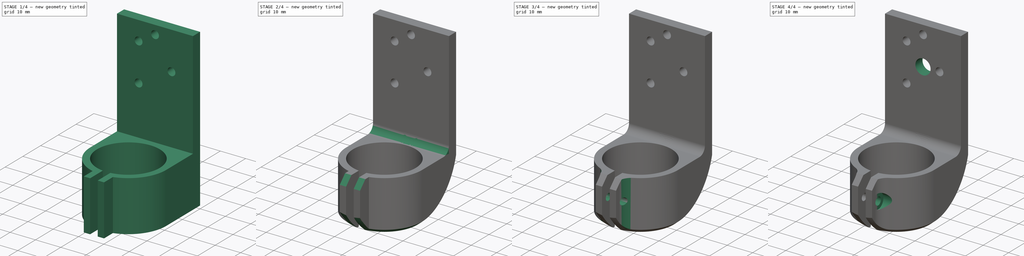
[diagram: build sequence overview — one tinted view per stage of 4, left to right]
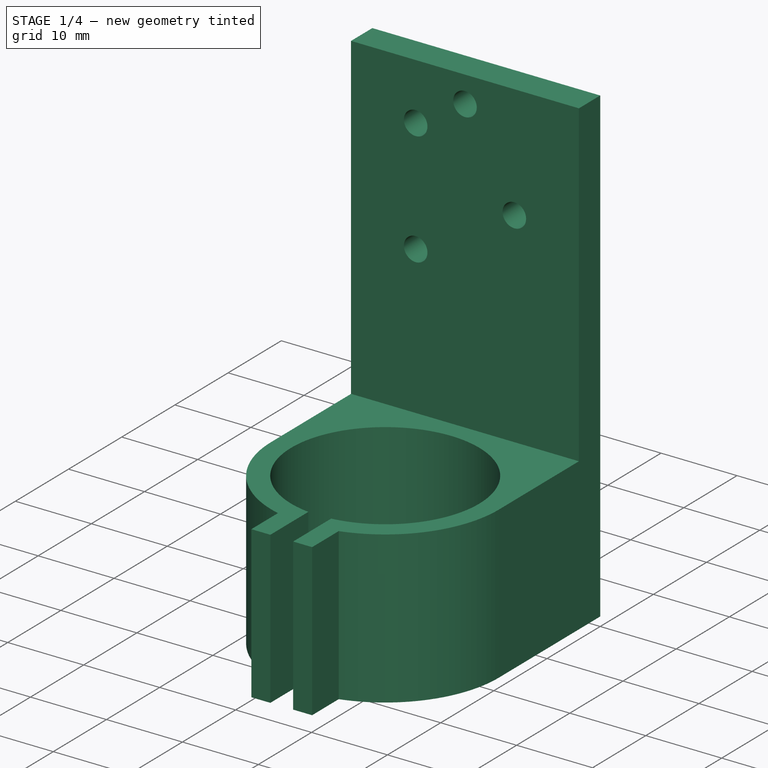
[diagram: stage 1 of 4 — iso view after this stage's code; geometry added in this stage tinted green]
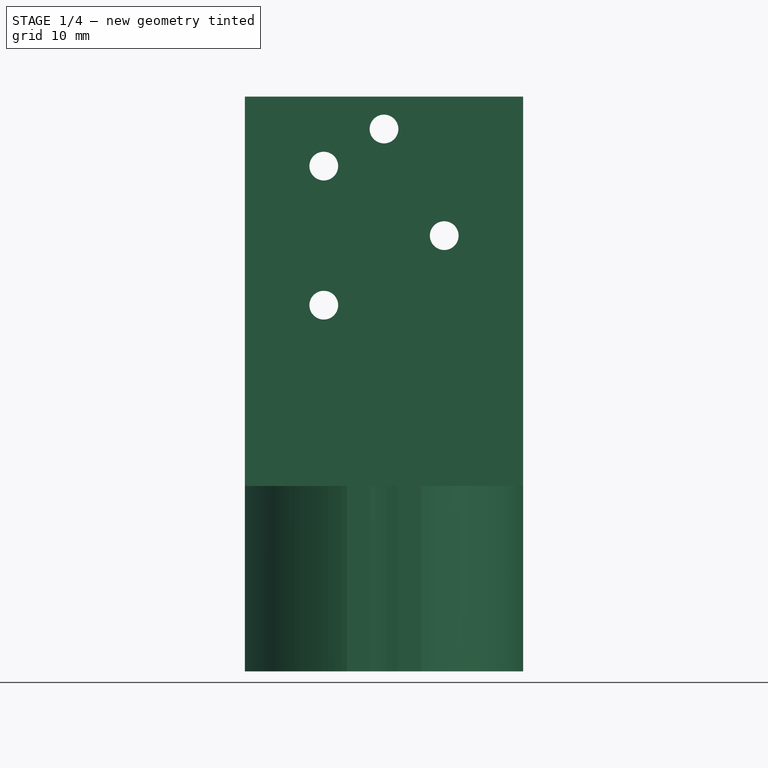
[diagram: stage 1 of 4 — front view after this stage's code; geometry added in this stage tinted green]
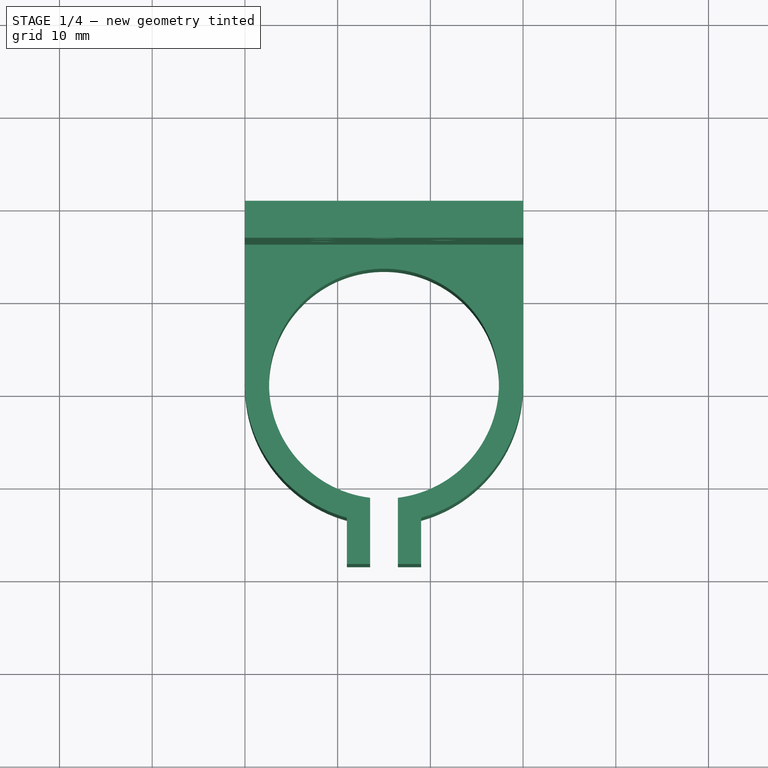
[diagram: stage 1 of 4 — top view after this stage's code; geometry added in this stage tinted green]
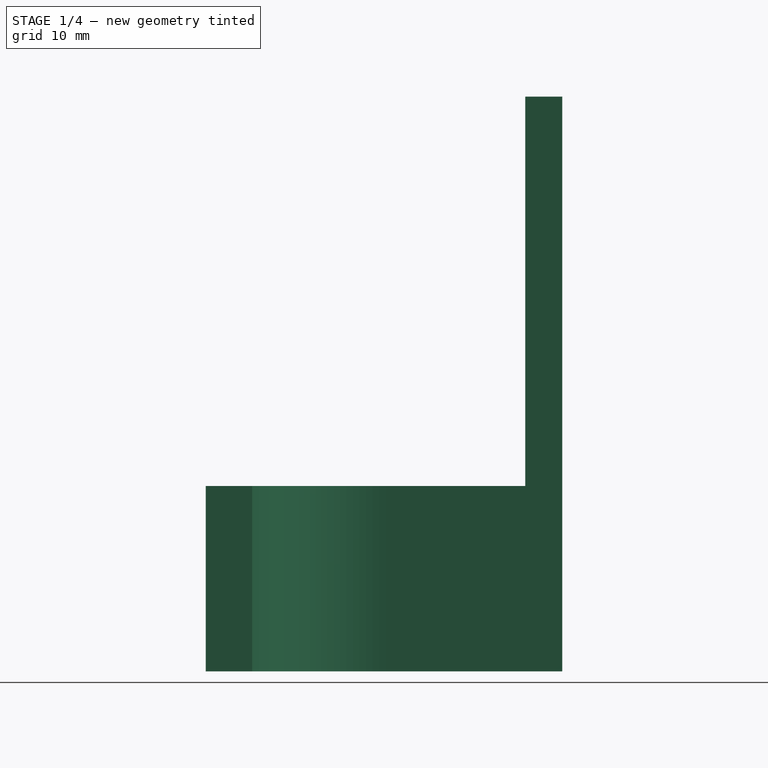
[diagram: stage 1 of 4 — right view after this stage's code; geometry added in this stage tinted green]
FCSTD DOCUMENT  (FreeCAD 0.18R16110 (Git))
Label: Soporte_Motor_H
License: All rights reserved
LicenseURL: http://en.wikipedia.org/wiki/All_rights_reserved
objects: Sketcher::SketchObject×8, PartDesign::Pocket×5, PartDesign::Pad×2, PartDesign::Fillet×2, PartDesign::Plane×1, PartDesign::Line×1, PartDesign::Groove×1, PartDesign::Chamfer×1, PartDesign::Body×1
note: 30 computed .brp shape members not serialized (recipe doc carries the construction recipe); baked Part::Feature solids carry a one-line shape summary decoded from their .brp

FEATURE [Sketcher::SketchObject] Sketch074
  MapMode = 5
  Placement = pos=(0,0,0) rot=(1,0,0;1.5708rad)
  Support = -> [XZ_Plane010]
  sketch-geometry (4):
    g0: LineSegment StartX=0 StartY=15 StartZ=0 EndX=30 EndY=15 EndZ=0
    g1: LineSegment StartX=30 StartY=15 StartZ=0 EndX=30 EndY=-47 EndZ=0
    g2: LineSegment StartX=30 StartY=-47 StartZ=0 EndX=0 EndY=-47 EndZ=0
    g3: LineSegment StartX=0 StartY=-47 StartZ=0 EndX=0 EndY=15 EndZ=0
  constraints (12):
    c: Coincident(g0,g1)
    c: Coincident(g1,g2)
    c: Coincident(g2,g3)
    c: Coincident(g3,g0)
    c: Horizontal(g0)
    c: Horizontal(g2)
    c: Vertical(g1)
    c: Vertical(g3)
    c: DistanceY(g3,g3) = 62
    c: PointOnObject(g0,g-2)
    c: DistanceX(g2,g2) = 30
    c: DistanceY(g-1,g0) = 15
FEATURE [PartDesign::Pad] Pad034
  Length = 4
  Length2 = 100
  Placement = pos=(0,0,0) rot=(1,0,0;1.5708rad)
  Profile = -> Sketch074
  Type = 0
FEATURE [Sketcher::SketchObject] Sketch160
  MapMode = 5
  Placement = pos=(0,0,-47) rot=(1,0,0;3.14159rad)
  Support = -> [Pad034]
  sketch-geometry (13):
    g0: LineSegment StartX=0 StartY=0 StartZ=0 EndX=0 EndY=19 EndZ=0
    g1: LineSegment StartX=30 StartY=19 StartZ=0 EndX=30 EndY=0 EndZ=0
    g2: LineSegment StartX=30 StartY=0 StartZ=0 EndX=0 EndY=0 EndZ=0
    g3: ArcOfCircle CenterX=15 CenterY=19 CenterZ=0 NormalX=0 NormalY=0 NormalZ=1 AngleXU=0 Radius=15 StartAngle=1e-16 EndAngle=1.30086
    g4: LineSegment StartX=13.5 StartY=31.3089 StartZ=0 EndX=13.5 EndY=38.4568 EndZ=0
    g5: LineSegment StartX=13.5 StartY=38.4568 StartZ=0 EndX=11 EndY=38.4568 EndZ=0
    g6: LineSegment StartX=11 StartY=38.4568 StartZ=0 EndX=11 EndY=33.4568 EndZ=0
    g7: LineSegment StartX=16.5 StartY=38.4568 StartZ=0 EndX=19 EndY=38.4568 EndZ=0
    g8: LineSegment StartX=19 StartY=38.4568 StartZ=0 EndX=19 EndY=33.4568 EndZ=0
    g9: LineSegment StartX=16.5 StartY=31.3089 StartZ=0 EndX=16.5 EndY=38.4568 EndZ=0
    g10: LineSegment [constr] StartX=15 StartY=19 StartZ=0 EndX=15 EndY=41 EndZ=0
    g11: ArcOfCircle CenterX=15 CenterY=19 CenterZ=0 NormalX=0 NormalY=0 NormalZ=1 AngleXU=0 Radius=15 StartAngle=1.84073 EndAngle=3.14159
    g12: ArcOfCircle CenterX=15 CenterY=19 CenterZ=0 NormalX=0 NormalY=0 NormalZ=1 AngleXU=0 Radius=12.4 StartAngle=1.69206 EndAngle=7.73272
  constraints (35):
    c: Coincident(g2,g0)
    c: Horizontal(g2)
    c: Coincident(g1,g2)
    c: Vertical(g1)
    c: Coincident(g0,g-1)
    c: Tangent(g3,g1) = 1.5708
    c: Vertical(g0)
    c: Coincident(g4,g5)
    c: Coincident(g5,g6)
    c: Horizontal(g5)
    c: Vertical(g4)
    c: Vertical(g6)
    c: Coincident(g7,g8)
    c: Coincident(g9,g7)
    c: Horizontal(g7)
    c: Vertical(g8)
    c: Vertical(g9)
    c: Distance(g10) = 22
    c: Symmetric(g4,g7,g10)
    c: Symmetric(g7,g5,g10)
    c: DistanceX(g5,g7) = 8
    c: DistanceX(g4,g7) = 3
    c: Equal(g3,g11)
    c: Coincident(g11,g6)
    c: Coincident(g3,g11)
    c: Coincident(g3,g8)
    c: Coincident(g4,g12)
    c: Coincident(g12,g9)
    c: Coincident(g12,g3)
    c: Diameter(g12) = 24.8
    c: Coincident(g10,g3)
    c: Tangent(g11,g0) = 1.5708
    c: DistanceY(g6,g6) = 5
    c: DistanceX(g2,g2) = 30
    c: DistanceY(g0,g0) = 19
FEATURE [PartDesign::Pad] Pad084
  BaseFeature = -> Pad034
  Length = 20
  Length2 = 100
  Placement = pos=(0,0,0) rot=(1,0,0;1.5708rad)
  Profile = -> Sketch160
  Reversed = true
  Type = 0
FEATURE [Sketcher::SketchObject] Sketch164
  MapMode = 5
  Placement = pos=(0,-4,0) rot=(1,0,0;1.5708rad)
  sketch-geometry (9):
    g0: Circle CenterX=8.50481 CenterY=7.5 CenterZ=0 NormalX=0 NormalY=0 NormalZ=1 AngleXU=0 Radius=1.55
    g1: Circle CenterX=8.50481 CenterY=-7.5 CenterZ=0 NormalX=0 NormalY=0 NormalZ=1 AngleXU=0 Radius=1.55
    g2: Circle CenterX=21.4952 CenterY=9e-16 CenterZ=0 NormalX=0 NormalY=0 NormalZ=1 AngleXU=0 Radius=1.55
    g3: LineSegment [constr] StartX=8.50481 StartY=7.5 StartZ=0 EndX=8.50481 EndY=-7.5 EndZ=0
    g4: LineSegment [constr] StartX=8.50481 StartY=-7.5 StartZ=0 EndX=21.4952 EndY=9e-16 EndZ=0
    g5: LineSegment [constr] StartX=21.4952 StartY=9e-16 StartZ=0 EndX=8.50481 EndY=7.5 EndZ=0
    g6: LineSegment [constr] StartX=8.50481 StartY=9e-16 StartZ=0 EndX=21.4952 EndY=9e-16 EndZ=0
    g7: GeomPoint X=15 Y=-3.75 Z=0
    g8: Circle CenterX=15 CenterY=11.5 CenterZ=0 NormalX=0 NormalY=0 NormalZ=1 AngleXU=0 Radius=1.55
  constraints (20):
    c: Coincident(g3,g0)
    c: Coincident(g3,g1)
    c: Vertical(g3)
    c: Coincident(g3,g4)
    c: Coincident(g4,g2)
    c: Coincident(g4,g5)
    c: Coincident(g5,g3)
    c: PointOnObject(g6,g3)
    c: Coincident(g6,g2)
    c: Horizontal(g6)
    c: DistanceY(g3,g3) = 15
    c: Distance(g5) = 15
    c: Distance(g4) = 15
    c: PointOnObject(g6,g-1)
    c: Symmetric(g1,g2,g7)
    c: DistanceX(g-2,g7) = 15
    c: Diameter(g0) = 3.1
    c: Diameter(g2) = 3.1
    c: Diameter(g1) = 3.1
    c: Diameter(g8) = 3.1
FEATURE [PartDesign::Pocket] Pocket003
  BaseFeature = -> Pad084
  Length = 5
  Length2 = 100
  Placement = pos=(0,0,0) rot=(1,0,0;1.5708rad)
  Profile = -> Sketch164
  Type = 0
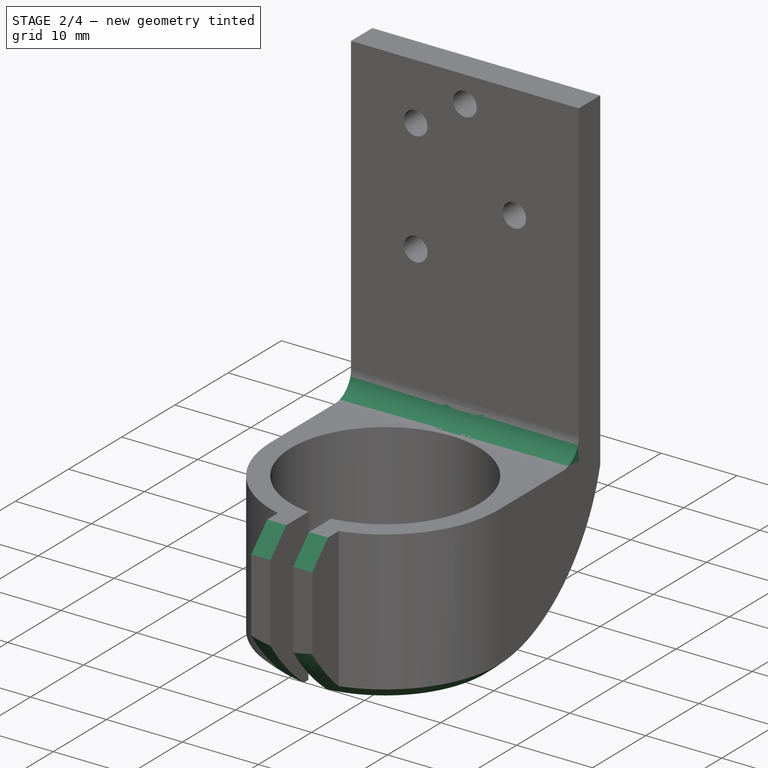
[diagram: stage 2 of 4 — iso view after this stage's code; geometry added in this stage tinted green]
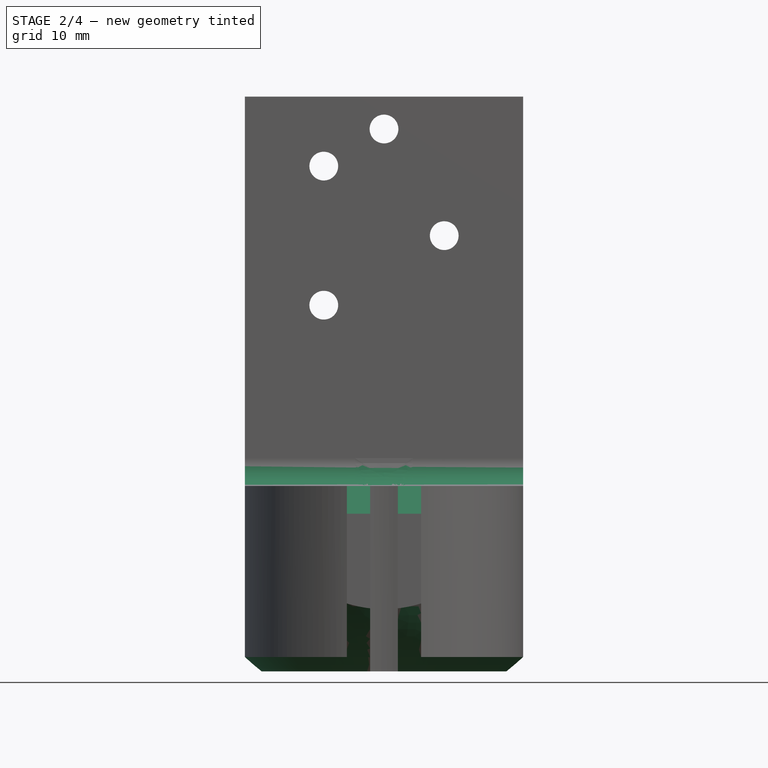
[diagram: stage 2 of 4 — front view after this stage's code; geometry added in this stage tinted green]
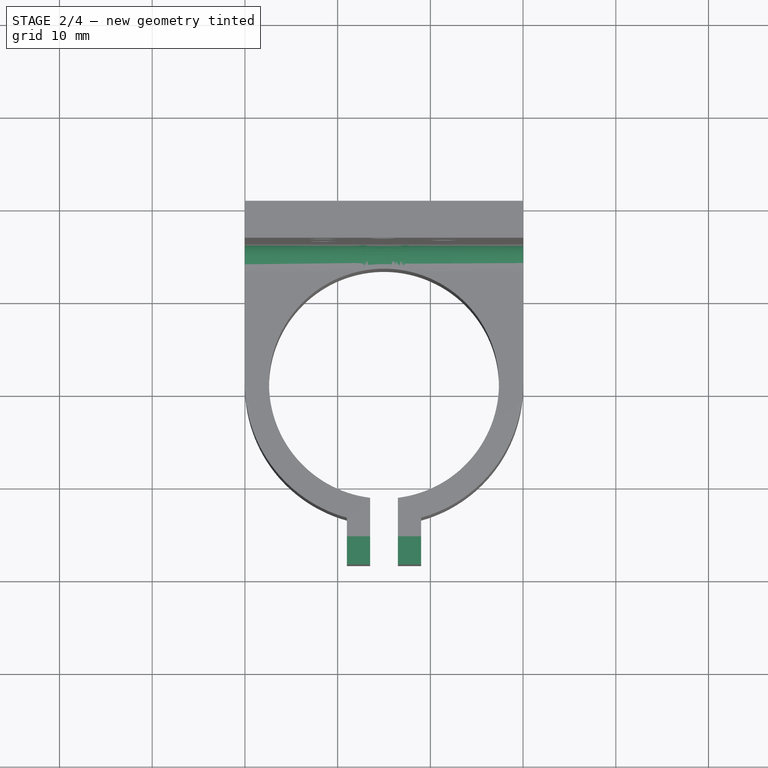
[diagram: stage 2 of 4 — top view after this stage's code; geometry added in this stage tinted green]
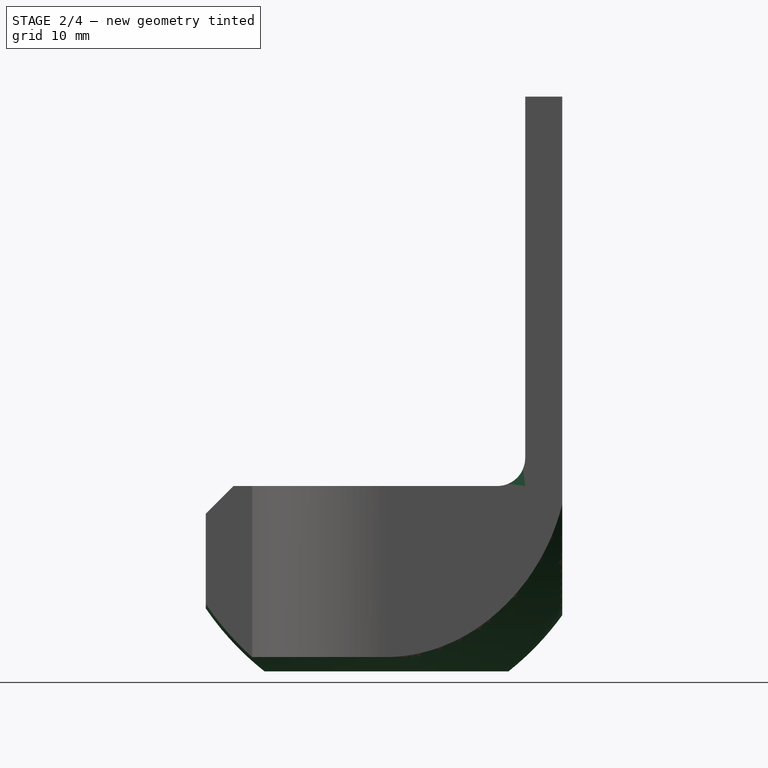
[diagram: stage 2 of 4 — right view after this stage's code; geometry added in this stage tinted green]
FEATURE [PartDesign::Plane] DatumPlane
  AttachmentOffset = pos=(0,0,1.5) rot=(0,0,1;0rad)
  Length = 72.9624
  MapMode = 5
  Placement = pos=(15,0,-3e-16) rot=(0.707107,0,0.707107;3.14159rad)
  ResizeMode = 0
  Support = -> [Pocket003]
  Width = 59.4192
FEATURE [PartDesign::Line] DatumLine
  AttacherType = Attacher::AttachEngineLine
  AttachmentOffset = pos=(19,0,0) rot=(0,0,1;0rad)
  MapMode = 16
  Placement = pos=(15,-19,3.9e-15) rot=(0,0,-1;1.5708rad)
  Support = -> [DatumPlane]
FEATURE [Sketcher::SketchObject] Sketch165
  MapMode = 5
  Placement = pos=(15,0,-3e-16) rot=(0.707107,0,0.707107;3.14159rad)
  Support = -> [DatumPlane]
  sketch-geometry (5):
    g0: LineSegment StartX=-51.8168 StartY=23.5054 StartZ=0 EndX=-59.2151 EndY=23.5054 EndZ=0
    g1: LineSegment StartX=-59.2151 StartY=23.5054 StartZ=0 EndX=-59.2151 EndY=49.5066 EndZ=0
    g2: LineSegment StartX=-59.2151 StartY=49.5066 StartZ=0 EndX=-28.9135 EndY=49.5066 EndZ=0
    g3: LineSegment StartX=-28.9135 StartY=49.5066 StartZ=0 EndX=-28.9135 EndY=43.2185 EndZ=0
    g4: ArcOfCircle CenterX=-23.0166 CenterY=13.2059 CenterZ=0 NormalX=0 NormalY=0 NormalZ=1 AngleXU=0 Radius=30.5864 StartAngle=1.76481 EndAngle=2.79815
  constraints (9):
    c: Coincident(g0,g1)
    c: Vertical(g1)
    c: Coincident(g1,g2)
    c: Horizontal(g2)
    c: Coincident(g2,g3)
    c: Vertical(g3)
    c: Coincident(g4,g0)
    c: Coincident(g4,g3)
    c: Horizontal(g0)
FEATURE [PartDesign::Groove] Groove
  Angle = 360
  Axis = (2e-16,2e-16,1)
  Base = (15,-19,3.9e-15)
  BaseFeature = -> Pocket003
  Placement = pos=(0,0,0) rot=(1,0,0;1.5708rad)
  Profile = -> Sketch165
  ReferenceAxis = -> DatumLine
  Reversed = true
FEATURE [PartDesign::Chamfer] Chamfer
  Base = -> Groove [Edge34,Edge38]
  BaseFeature = -> Groove
  Placement = pos=(0,0,0) rot=(1,0,0;1.5708rad)
  Size = 3
FEATURE [PartDesign::Fillet] Fillet
  Base = -> Chamfer [Edge7]
  BaseFeature = -> Chamfer
  Placement = pos=(0,0,0) rot=(1,0,0;1.5708rad)
  Radius = 3
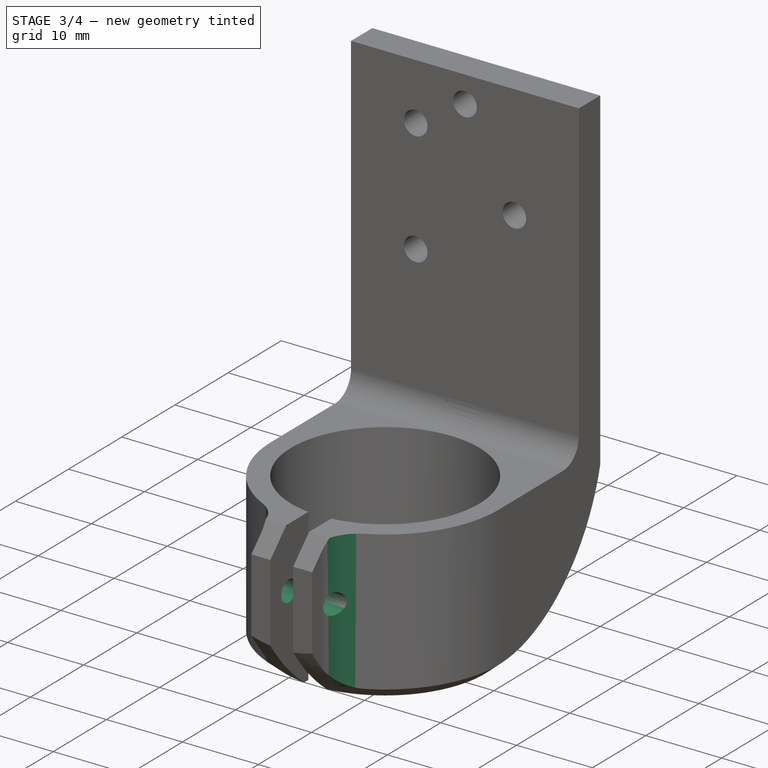
[diagram: stage 3 of 4 — iso view after this stage's code; geometry added in this stage tinted green]
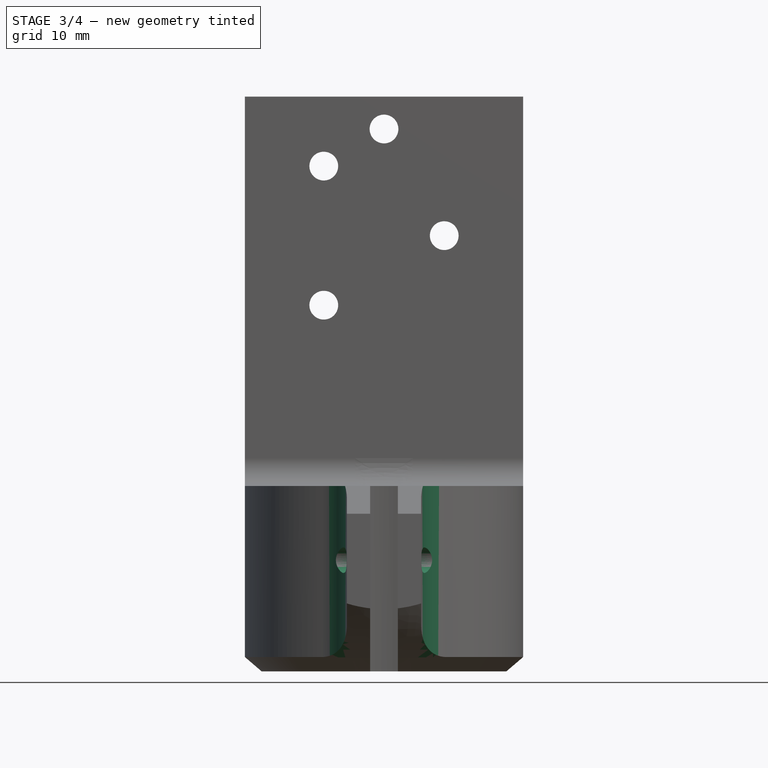
[diagram: stage 3 of 4 — front view after this stage's code; geometry added in this stage tinted green]
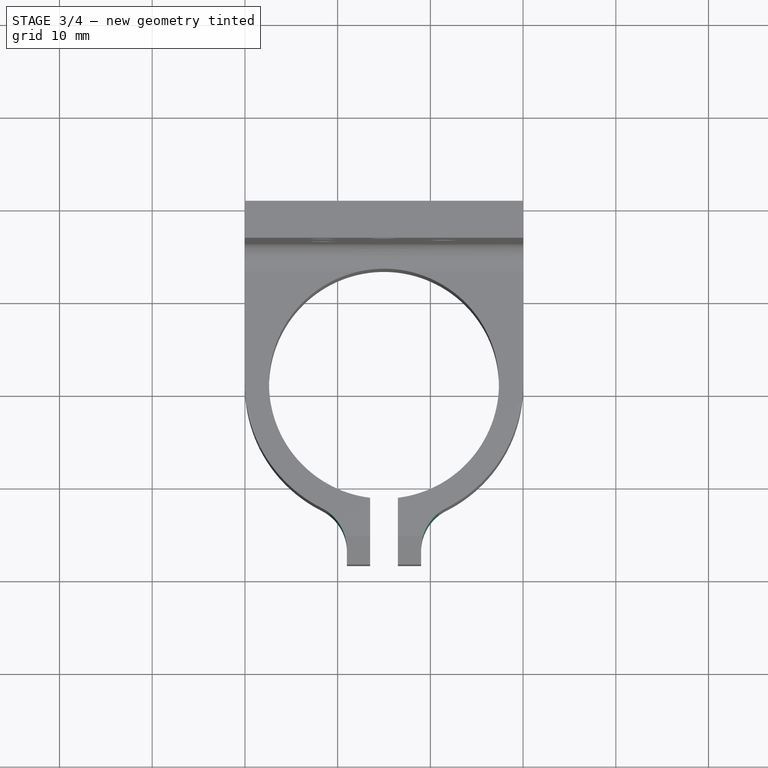
[diagram: stage 3 of 4 — top view after this stage's code; geometry added in this stage tinted green]
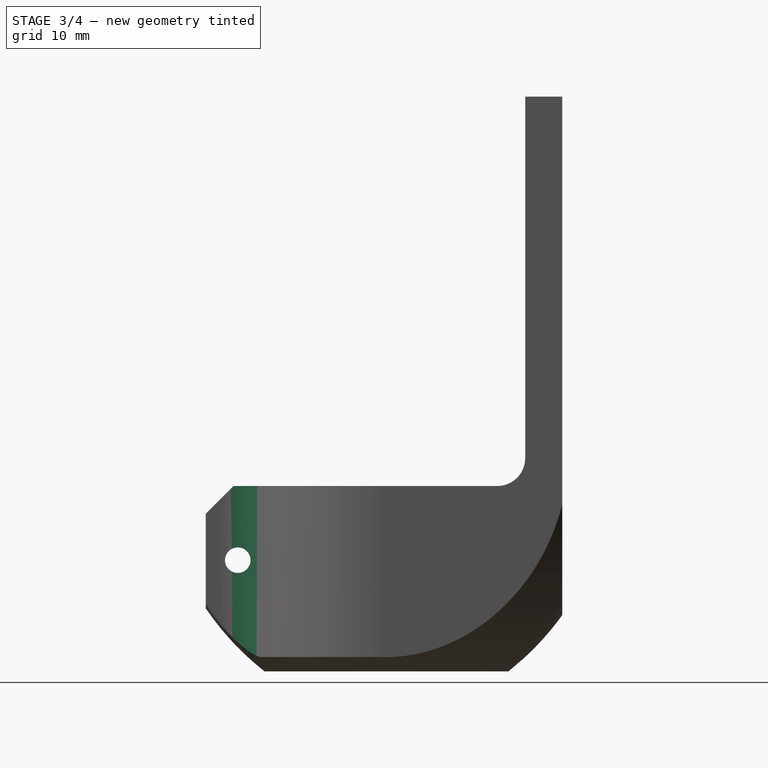
[diagram: stage 3 of 4 — right view after this stage's code; geometry added in this stage tinted green]
FEATURE [PartDesign::Fillet] Fillet001
  Base = -> Fillet [Edge75,Edge16]
  BaseFeature = -> Fillet
  Placement = pos=(0,0,0) rot=(1,0,0;1.5708rad)
  Radius = 5
FEATURE [Sketcher::SketchObject] Sketch
  MapMode = 5
  Placement = pos=(19,0,0) rot=(0.707107,0,0.707107;3.14159rad)
  Support = -> [Fillet001]
  sketch-geometry (1):
    g0: Circle CenterX=-35 CenterY=35 CenterZ=0 NormalX=0 NormalY=0 NormalZ=1 AngleXU=0 Radius=1.375
  constraints (3):
    c: Diameter(g0) = 2.75
    c: DistanceY(g-1,g0) = 35
    c: DistanceX(g0,g-1) = 35
FEATURE [PartDesign::Pocket] Pocket
  BaseFeature = -> Fillet001
  Length = 5
  Length2 = 100
  Midplane = true
  Placement = pos=(0,0,0) rot=(1,0,0;1.5708rad)
  Profile = -> Sketch
  Type = 1
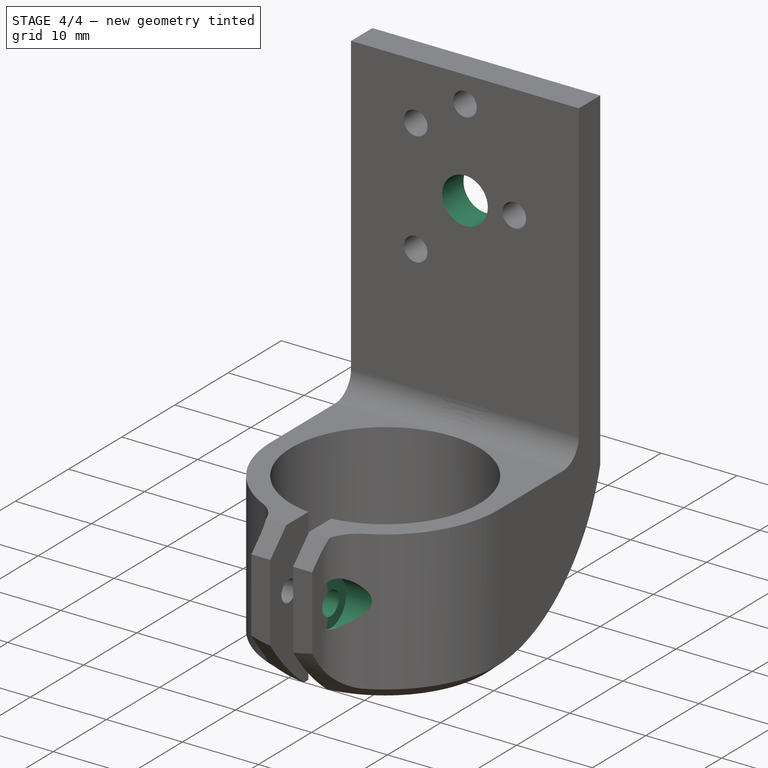
[diagram: stage 4 of 4 — iso view after this stage's code; geometry added in this stage tinted green]
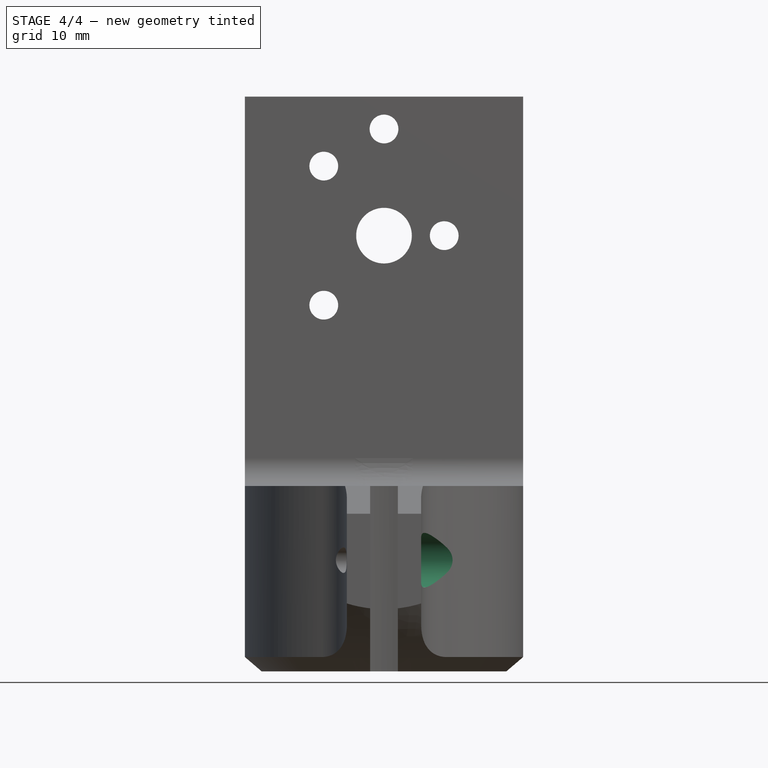
[diagram: stage 4 of 4 — front view after this stage's code; geometry added in this stage tinted green]
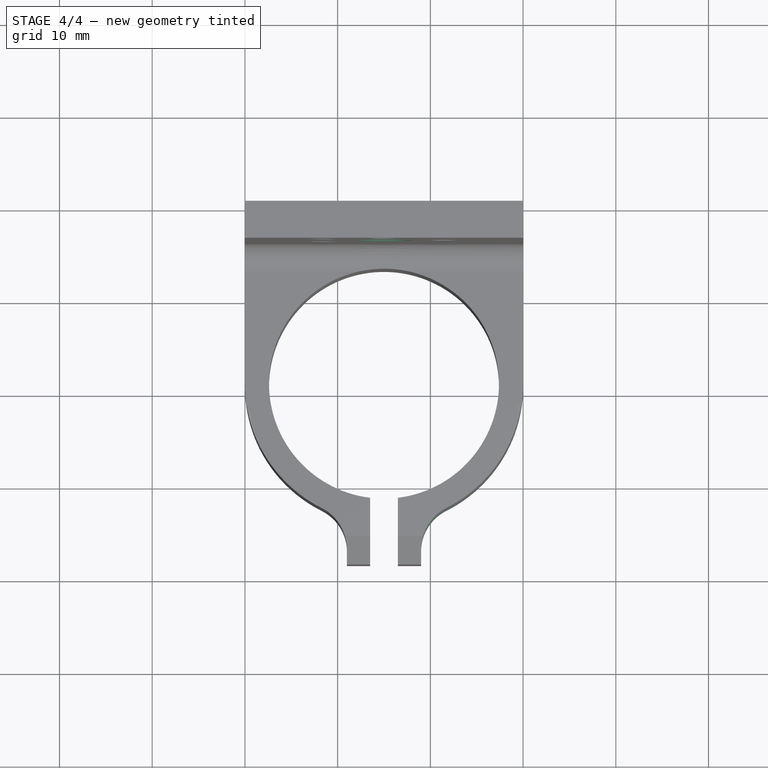
[diagram: stage 4 of 4 — top view after this stage's code; geometry added in this stage tinted green]
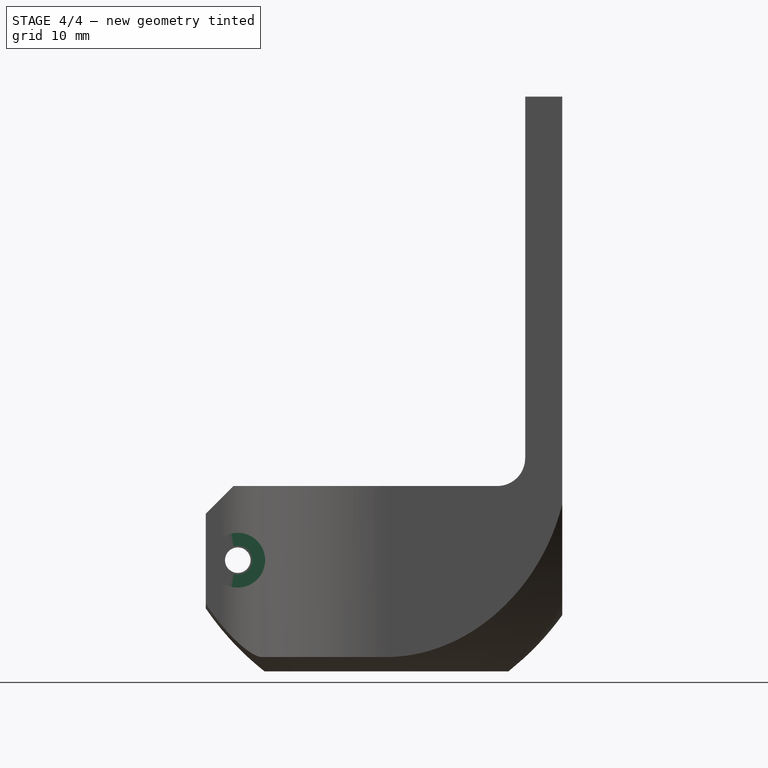
[diagram: stage 4 of 4 — right view after this stage's code; geometry added in this stage tinted green]
FEATURE [Sketcher::SketchObject] Sketch166
  ExternalGeometry = -> [Pocket]
  MapMode = 5
  Placement = pos=(19,0,0) rot=(0.707107,0,0.707107;3.14159rad)
  Support = -> [Pocket]
  sketch-geometry (1):
    g0: Circle CenterX=-35 CenterY=35 CenterZ=0 NormalX=0 NormalY=0 NormalZ=1 AngleXU=0 Radius=2.95
  constraints (2):
    c: Diameter(g0) = 5.9
    c: Coincident(g0,g-3)
FEATURE [PartDesign::Pocket] Pocket004
  BaseFeature = -> Pocket
  Length = 5
  Length2 = 100
  Placement = pos=(0,0,0) rot=(1,0,0;1.5708rad)
  Profile = -> Sketch166
  Reversed = true
  Type = 0
FEATURE [Sketcher::SketchObject] Sketch167
  ExternalGeometry = -> [Pocket004]
  MapMode = 5
  Placement = pos=(19,0,0) rot=(0.707107,0,0.707107;3.14159rad)
  Support = -> [Pocket004]
  sketch-geometry (1):
    g0: Circle CenterX=-35 CenterY=35 CenterZ=0 NormalX=0 NormalY=0 NormalZ=1 AngleXU=0 Radius=1.55
  constraints (2):
    c: Coincident(g0,g-3)
    c: Diameter(g0) = 3.1
FEATURE [PartDesign::Pocket] Pocket005
  BaseFeature = -> Pocket004
  Length = 0
  Length2 = 100
  Placement = pos=(0,0,0) rot=(1,0,0;1.5708rad)
  Profile = -> Sketch167
  Type = 3
  UpToFace = -> Pocket004 [Face7]
FEATURE [Sketcher::SketchObject] Sketch168
  MapMode = 5
  Placement = pos=(0,-4,1.3e-15) rot=(1,0,0;1.5708rad)
  Support = -> [Pocket005]
  sketch-geometry (1):
    g0: Circle CenterX=15 CenterY=0 CenterZ=0 NormalX=0 NormalY=0 NormalZ=1 AngleXU=0 Radius=3
  constraints (3):
    c: Diameter(g0) = 6
    c: PointOnObject(g0,g-1)
    c: DistanceX(g-1,g0) = 15
FEATURE [PartDesign::Pocket] Pocket006
  BaseFeature = -> Pocket005
  Length = 5
  Length2 = 100
  Placement = pos=(0,0,0) rot=(1,0,0;1.5708rad)
  Profile = -> Sketch168
  Type = 0
FEATURE [PartDesign::Body] Body010  label="Soporte_horizontal_x"
  Group = -> [Sketch074,Pad034,Sketch160,Pad084,Sketch164,Pocket003,DatumPlane,DatumLine,Sketch165,Groove,Chamfer,Fillet,Fillet001,Sketch,Pocket,Sketch166,Pocket004,Sketch167,Pocket005,Sketch168,Pocket006]
  Origin = -> Origin010
  Placement = pos=(0,0,0) rot=(0.707107,0,-0.707107;3.14159rad)
  Tip = -> Pocket006
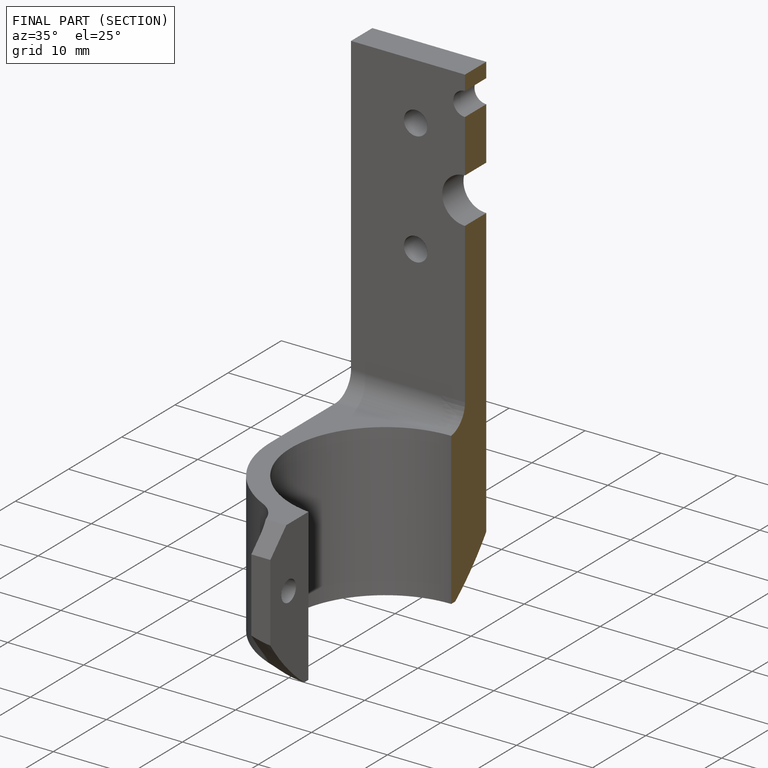
[diagram: finished part — half-section view (interior)]
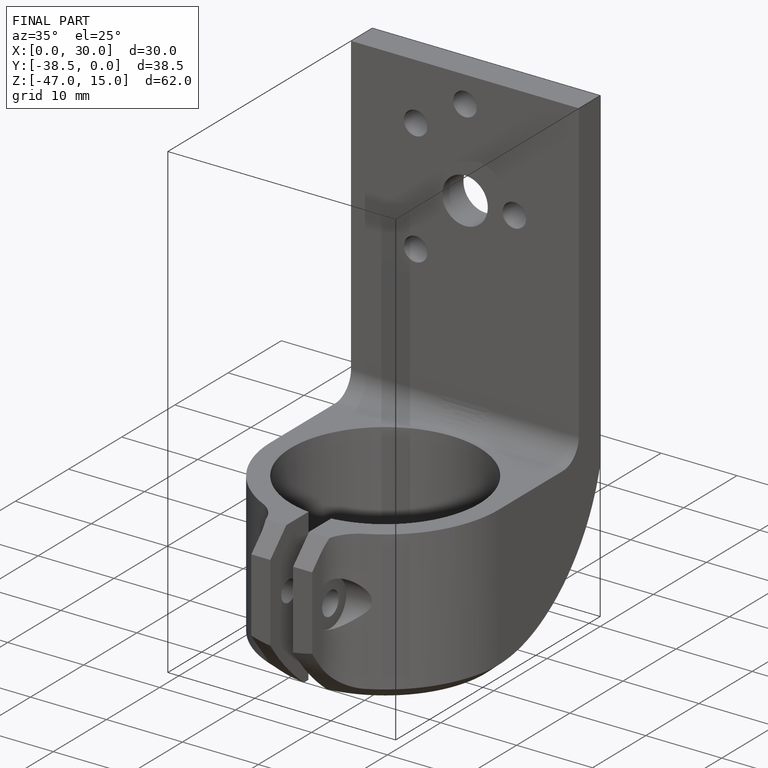
[diagram: finished part — iso view with bounding-box wireframe]
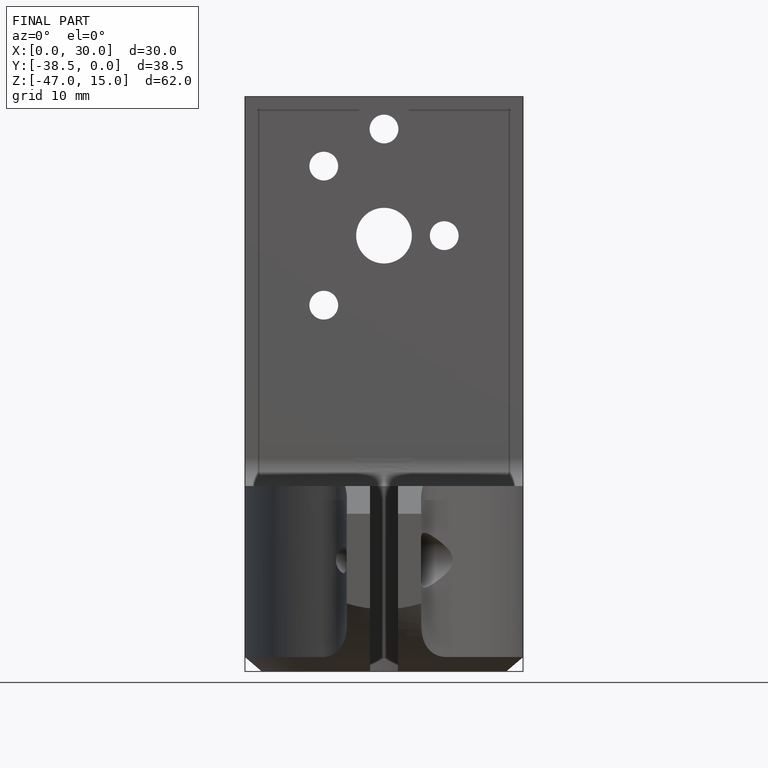
[diagram: finished part — front view with bounding-box wireframe]
